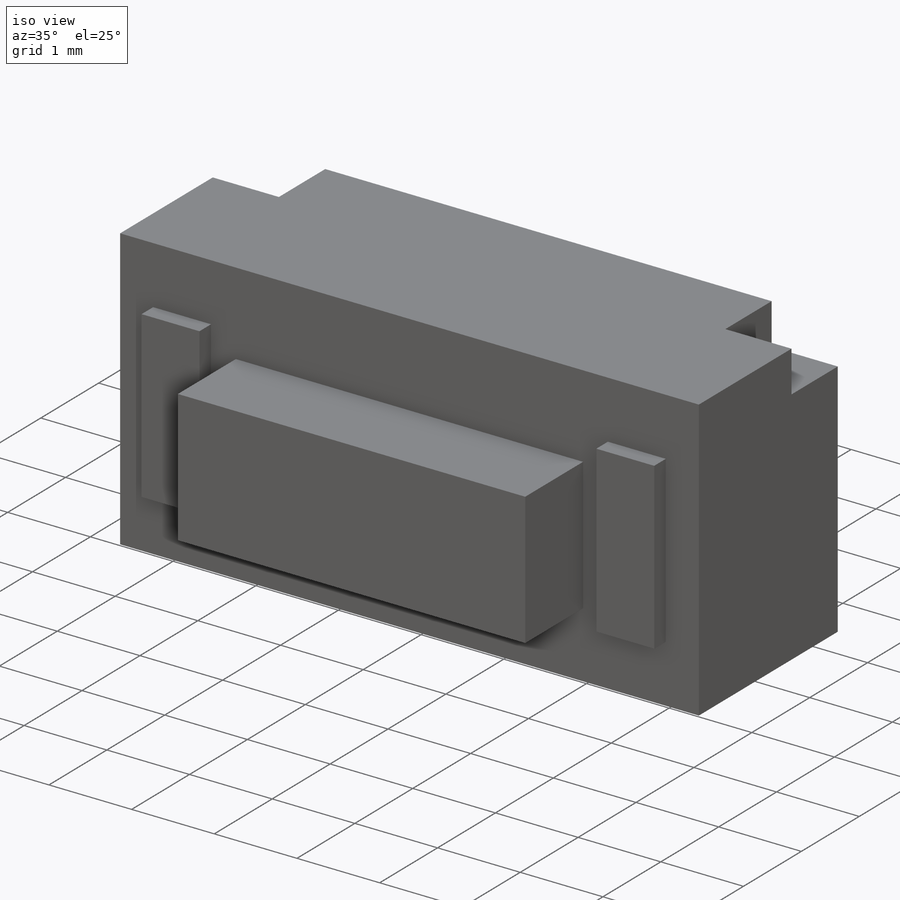
[diagram: iso view]
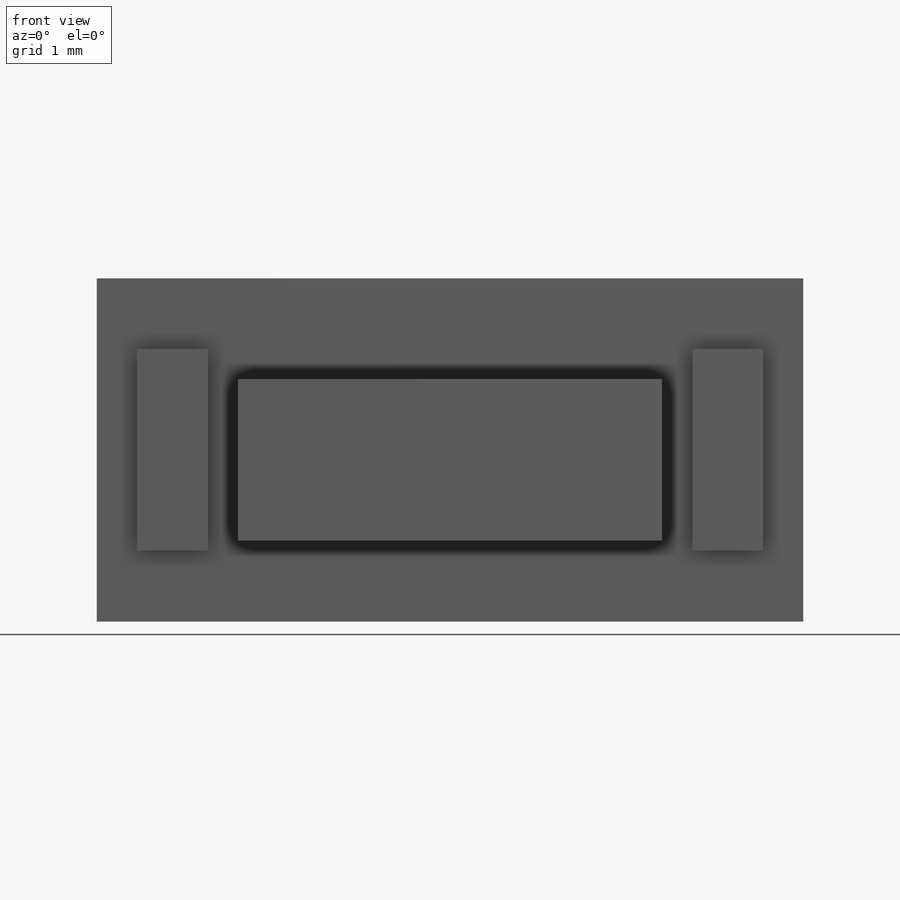
[diagram: front view]
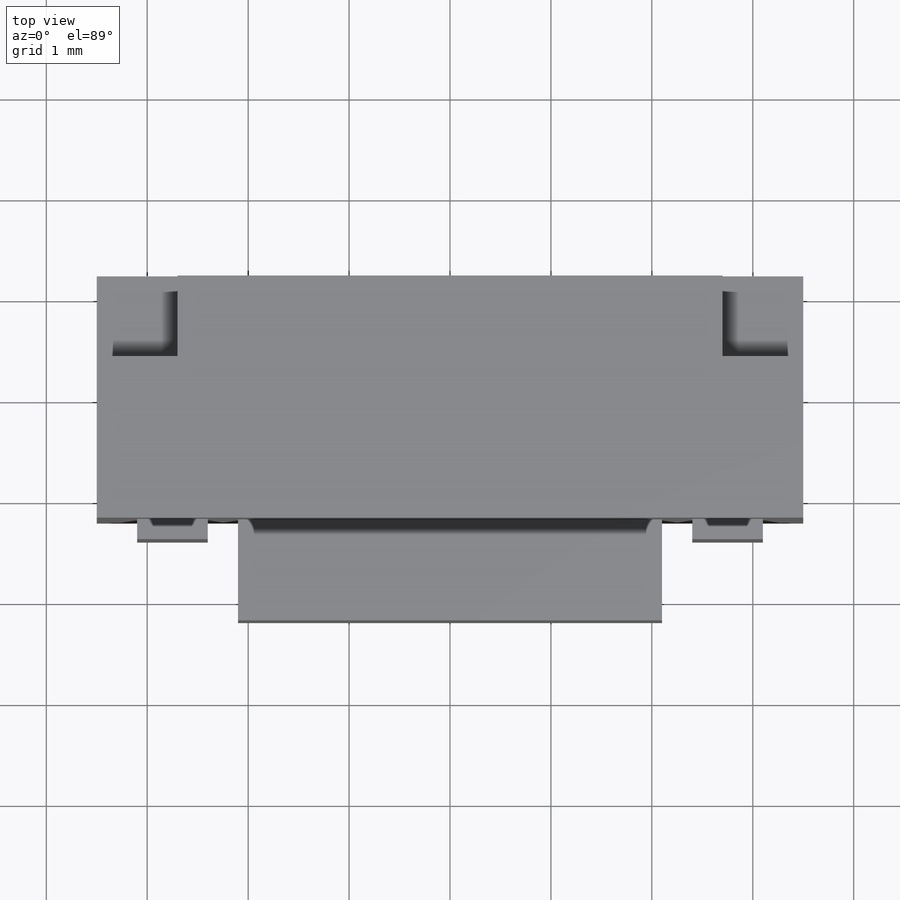
[diagram: top view]
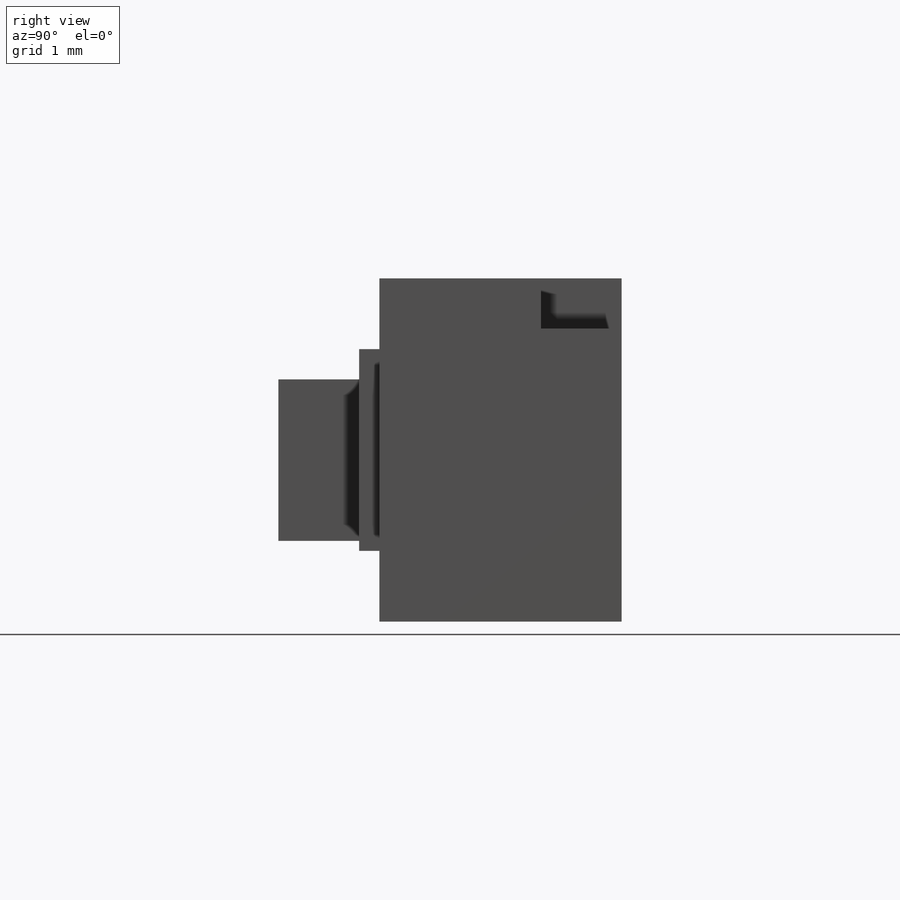
[diagram: right view]
SOLIDWORKS PART (.sldprt)
format: sldprt  version: not decoded by parser v0  size: 235,008 bytes
history: native  units: mm
features: sketch x5, extrude x4, plane x3, material x1, cut_extrude x1 (+8 scaffold rows collapsed)
feature tree (22):
  scaffold x8  (default folders/planes/origin — collapsed)
  material  "Matériau <non spécifié>"
  plane  "Plan de face"
  plane  "Plan de dessus"
  plane  "Plan de droite"
  sketch  "Esquisse1"  dims[c1.D1=~5.791733mm c1.D2=~10.039004mm c2.D1=7.0mm c2.D2=2.4mm]
  extrude  "Boss.-Extru.1"  Depth=3.4mm
  sketch  "Esquisse2"  dims[c1.D1=~1.22809mm c1.D2=~0.865266mm c2.D1=~0.861271mm c2.D2=~0.787936mm c3.D1=~0.861271mm c3.D2=~0.845048mm c4.D1=0.8mm]
  cut_extrude  "Enlèv. mat.-Extru.1"  Depth=0.5mm
  sketch  "Esquisse3"  dims[c1.D1=~2.146679mm c1.D2=~0.841835mm c2.D1=~1.336413mm c2.D2=~2.578119mm c3.D1=~2.146679mm c3.D2=~0.726083mm c4.D1=0.7mm c4.D2=0.4mm c4.D3=0.4mm c4.D4=0.7mm c4.D5=0.8mm c4.D6=1.0mm c4.D7=0.3mm c4.D8=0.3mm c4.D9=0.7mm]
  extrude  "Boss.-Extru.2"  Depth=0.2mm
  sketch  "Esquisse4"  dims[D1=0.0mm]
  extrude  "Boss.-Extru.3"  Depth=0.8mm
  sketch  "Esquisse5"  dims[D1=0.6mm]
  extrude  "Boss.-Extru.4"  Depth=0.1mm
decode coverage: 10 of 10 modeling features carry decoded parameters
note: ~ marks probable driven/reference dimensions
note: suppression state not decoded; provenance and decode notes live in map.json
